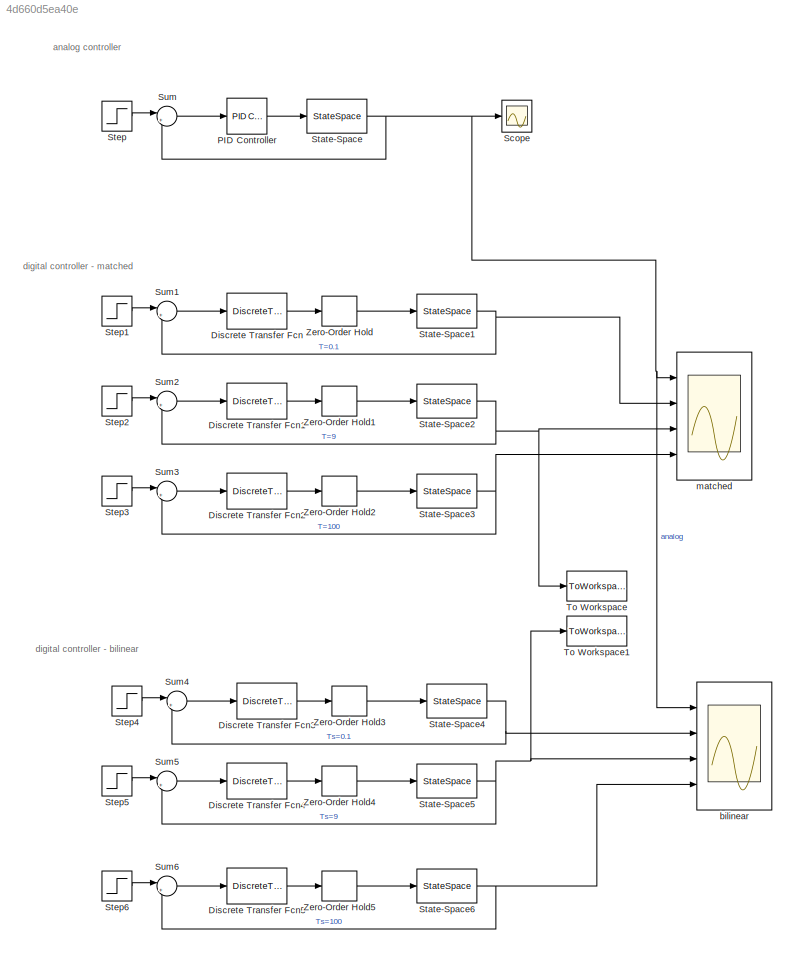
MODEL slx_4d660d5ea40e
KIND model
CONFIG AbsTol = auto
CONFIG EnableMultiTasking = off
CONFIG FixedStep = auto
CONFIG MaxStep = auto
CONFIG MinStep = auto
CONFIG RelTol = 1e-3
CONFIG SampleTimeConstraint = Unconstrained
CONFIG Solver = VariableStepAuto
CONFIG SolverName = VariableStepAuto
CONFIG StartTime = 0.0
CONFIG StopTime = 600
BLOCK [DiscreteTransferFcn] Discrete Transfer Fcn
  Denominator = D_matched(1,:)
  InputPortMap = u0
  Numerator = N_matched(1,:)
  Ports = [1, 1]
BLOCK [DiscreteTransferFcn] Discrete Transfer Fcn1
  Denominator = D_matched(2,:)
  InputPortMap = u0
  Numerator = N_matched(2,:)
  Ports = [1, 1]
  SampleTime = Ts(2)
BLOCK [DiscreteTransferFcn] Discrete Transfer Fcn2
  Denominator = D_matched(3,:)
  InputPortMap = u0
  Numerator = N_matched(3,:)
  Ports = [1, 1]
  SampleTime = Ts(3)
BLOCK [DiscreteTransferFcn] Discrete Transfer Fcn3
  Denominator = D_bilinear(1,:)
  InputPortMap = u0
  Numerator = N_bilinear(1,:)
  Ports = [1, 1]
  SampleTime = Ts(1)
BLOCK [DiscreteTransferFcn] Discrete Transfer Fcn4
  Denominator = D_bilinear(2,:)
  InputPortMap = u0
  Numerator = N_bilinear(2,:)
  Ports = [1, 1]
  SampleTime = Ts(2)
BLOCK [DiscreteTransferFcn] Discrete Transfer Fcn5
  Denominator = D_bilinear(3,:)
  InputPortMap = u0
  Numerator = N_bilinear(3,:)
  Ports = [1, 1]
  SampleTime = Ts(3)
BLOCK [Reference] PID Controller  REF=simulink/Continuous/PID Controller
  Ports = [1, 1]
  SourceBlock = simulink/Continuous/PID Controller
  SourceProductBaseCode = SL
  SourceProductName = Simulink
  SourceType = PID 1dof
BLOCK [Scope] Scope
  Floating = off
  NumInputPorts = 1
  Ports = [1]
  ScopeSpecificationString = Simulink.scopes.TimeScopeBlockCfg('CurrentConfiguration', extmgr.ConfigurationSet(extmgr.Configuration('Core','General UI',true),extmgr.Configuration('Core','Source UI',true),extmgr.Configuration('Sources','WiredSimulink',true),extmgr.Configuration('Visuals','Time Domain',true,'SerializedDisplays',{struct('MinYLimReal','-0.15011','MaxYLimReal','1.35099','YLabelReal','','MinYLimMag','0.00000','MaxY...<+1326ch>
BLOCK [StateSpace] State-Space
  A = A
  B = B
  C = C
  D = 0
  InitialCondition = 0
  Ports = [1, 1]
BLOCK [StateSpace] State-Space1
  A = A
  B = B
  C = C
  D = 0
  InitialCondition = 0
  Ports = [1, 1]
BLOCK [StateSpace] State-Space2
  A = A
  B = B
  C = C
  D = 0
  InitialCondition = 0
  Ports = [1, 1]
BLOCK [StateSpace] State-Space3
  A = A
  B = B
  C = C
  D = 0
  InitialCondition = 0
  Ports = [1, 1]
BLOCK [StateSpace] State-Space4
  A = A
  B = B
  C = C
  D = 0
  InitialCondition = 0
  Ports = [1, 1]
BLOCK [StateSpace] State-Space5
  A = A
  B = B
  C = C
  D = 0
  InitialCondition = 0
  Ports = [1, 1]
BLOCK [StateSpace] State-Space6
  A = A
  B = B
  C = C
  D = 0
  InitialCondition = 0
  Ports = [1, 1]
BLOCK [Step] Step
  SampleTime = 0
BLOCK [Step] Step1
  SampleTime = 0
BLOCK [Step] Step2
  SampleTime = 0
BLOCK [Step] Step3
  SampleTime = 0
BLOCK [Step] Step4
  SampleTime = 0
BLOCK [Step] Step5
  SampleTime = 0
BLOCK [Step] Step6
  SampleTime = 0
BLOCK [Sum] Sum
  IconShape = round
  InputSameDT = off
  Inputs = |+-
  OutDataTypeStr = Inherit: Inherit via internal rule
  Ports = [2, 1]
  SaturateOnIntegerOverflow = off
BLOCK [Sum] Sum1
  IconShape = round
  InputSameDT = off
  Inputs = |+-
  OutDataTypeStr = Inherit: Inherit via internal rule
  Ports = [2, 1]
  SaturateOnIntegerOverflow = off
BLOCK [Sum] Sum2
  IconShape = round
  InputSameDT = off
  Inputs = |+-
  OutDataTypeStr = Inherit: Inherit via internal rule
  Ports = [2, 1]
  SaturateOnIntegerOverflow = off
BLOCK [Sum] Sum3
  IconShape = round
  InputSameDT = off
  Inputs = |+-
  OutDataTypeStr = Inherit: Inherit via internal rule
  Ports = [2, 1]
  SaturateOnIntegerOverflow = off
BLOCK [Sum] Sum4
  IconShape = round
  InputSameDT = off
  Inputs = |+-
  OutDataTypeStr = Inherit: Inherit via internal rule
  Ports = [2, 1]
  SaturateOnIntegerOverflow = off
BLOCK [Sum] Sum5
  IconShape = round
  InputSameDT = off
  Inputs = |+-
  OutDataTypeStr = Inherit: Inherit via internal rule
  Ports = [2, 1]
  SaturateOnIntegerOverflow = off
BLOCK [Sum] Sum6
  IconShape = round
  InputSameDT = off
  Inputs = |+-
  OutDataTypeStr = Inherit: Inherit via internal rule
  Ports = [2, 1]
  SaturateOnIntegerOverflow = off
BLOCK [ToWorkspace] To Workspace
  FixptAsFi = on
  MaxDataPoints = inf
  Ports = [1]
  SampleTime = -1
  Save2DSignal = 3-D array (concatenate along third dimension)
  SaveFormat = Timeseries
  VariableName = y_matched
BLOCK [ToWorkspace] To Workspace1
  FixptAsFi = on
  MaxDataPoints = inf
  Ports = [1]
  SampleTime = -1
  Save2DSignal = 3-D array (concatenate along third dimension)
  SaveFormat = Timeseries
  VariableName = y_bilinear
BLOCK [ZeroOrderHold] Zero-Order Hold
  SampleTime = Ts(1)
BLOCK [ZeroOrderHold] Zero-Order Hold1
  SampleTime = -1
BLOCK [ZeroOrderHold] Zero-Order Hold2
  SampleTime = -1
BLOCK [ZeroOrderHold] Zero-Order Hold3
  SampleTime = -1
BLOCK [ZeroOrderHold] Zero-Order Hold4
  SampleTime = -1
BLOCK [ZeroOrderHold] Zero-Order Hold5
  SampleTime = -1
BLOCK [Scope] bilinear
  Floating = off
  NumInputPorts = 4
  Ports = [4]
  ScopeSpecificationString = Simulink.scopes.TimeScopeBlockCfg('CurrentConfiguration', extmgr.ConfigurationSet(extmgr.Configuration('Core','General UI',true,'FigureColor',[0 0 0]),extmgr.Configuration('Core','Source UI',true),extmgr.Configuration('Sources','WiredSimulink',true,'DataLoggingVariableName','ScopeData2'),extmgr.Configuration('Visuals','Time Domain',true,'SerializedDisplays',{struct('MinYLimReal','-1.34192','MaxYLi...<+1612ch>
BLOCK [Scope] matched 
  Floating = off
  NumInputPorts = 4
  Ports = [4]
  ScopeSpecificationString = Simulink.scopes.TimeScopeBlockCfg('CurrentConfiguration', extmgr.ConfigurationSet(extmgr.Configuration('Core','General UI',true),extmgr.Configuration('Core','Source UI',true),extmgr.Configuration('Sources','WiredSimulink',true,'DataLoggingVariableName','ScopeData1'),extmgr.Configuration('Visuals','Time Domain',true,'SerializedDisplays',{struct('MinYLimReal','-0.62739','MaxYLimReal','2.77359','YLab...<+1587ch>
ANNOTATION (root): analog controller
ANNOTATION (root): digital controller - bilinear
ANNOTATION (root): digital controller - matched
LINE Discrete Transfer Fcn1:1 -> Zero-Order Hold1:1
LINE Discrete Transfer Fcn2:1 -> Zero-Order Hold2:1
LINE Discrete Transfer Fcn3:1 -> Zero-Order Hold3:1
LINE Discrete Transfer Fcn4:1 -> Zero-Order Hold4:1
LINE Discrete Transfer Fcn5:1 -> Zero-Order Hold5:1
LINE Discrete Transfer Fcn:1 -> Zero-Order Hold:1
LINE PID Controller:1 -> State-Space:1
NET State-Space1:1 -> Sum1:2, matched :2
NET State-Space2:1 -> Sum2:2, To Workspace:1, matched :3
NET State-Space3:1 -> Sum3:2, matched :4
NET State-Space4:1 -> Sum4:2, bilinear:2
NET State-Space5:1 -> Sum5:2, To Workspace1:1, bilinear:3
NET State-Space6:1 -> Sum6:2, bilinear:4
NET State-Space:1 -> Scope:1, Sum:2, bilinear:1, matched :1
LINE Step1:1 -> Sum1:1
LINE Step2:1 -> Sum2:1
LINE Step3:1 -> Sum3:1
LINE Step4:1 -> Sum4:1
LINE Step5:1 -> Sum5:1
LINE Step6:1 -> Sum6:1
LINE Step:1 -> Sum:1
LINE Sum1:1 -> Discrete Transfer Fcn:1
LINE Sum2:1 -> Discrete Transfer Fcn1:1
LINE Sum3:1 -> Discrete Transfer Fcn2:1
LINE Sum4:1 -> Discrete Transfer Fcn3:1
LINE Sum5:1 -> Discrete Transfer Fcn4:1
LINE Sum6:1 -> Discrete Transfer Fcn5:1
LINE Sum:1 -> PID Controller:1
LINE Zero-Order Hold1:1 -> State-Space2:1
LINE Zero-Order Hold2:1 -> State-Space3:1
LINE Zero-Order Hold3:1 -> State-Space4:1
LINE Zero-Order Hold4:1 -> State-Space5:1
LINE Zero-Order Hold5:1 -> State-Space6:1
LINE Zero-Order Hold:1 -> State-Space1:1
note: NET lines group one-source signal fan-out (src -> all destinations, sorted); 1:1 wires keep LINE
